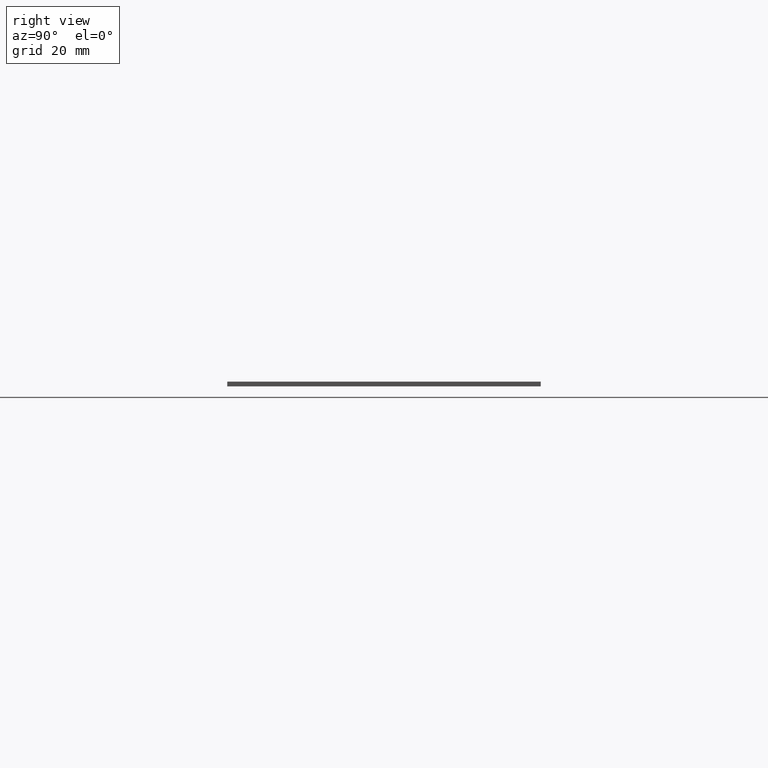
[diagram: clean part render]
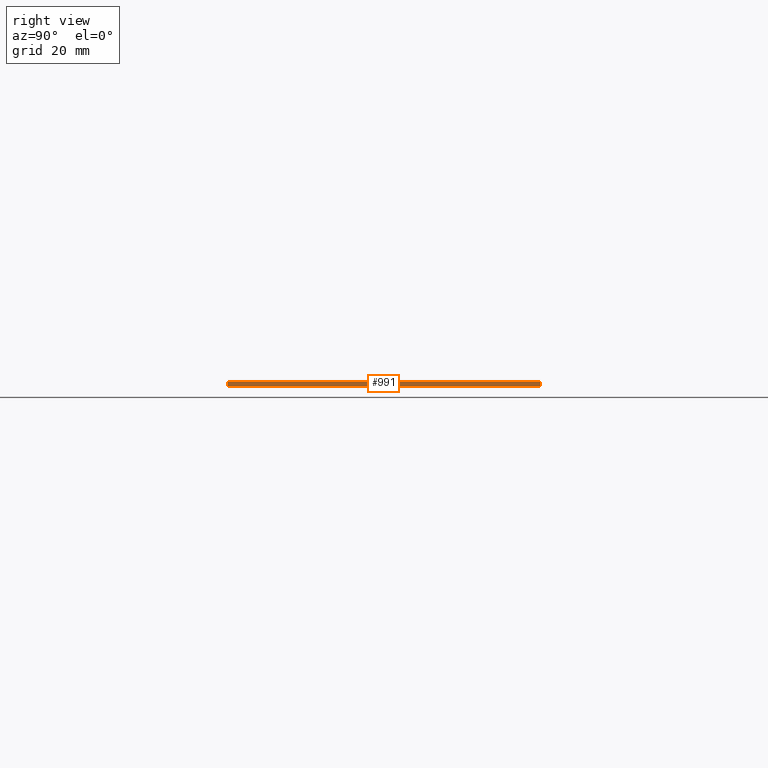
[diagram: same view with one face highlighted and labeled with its STEP entity id]
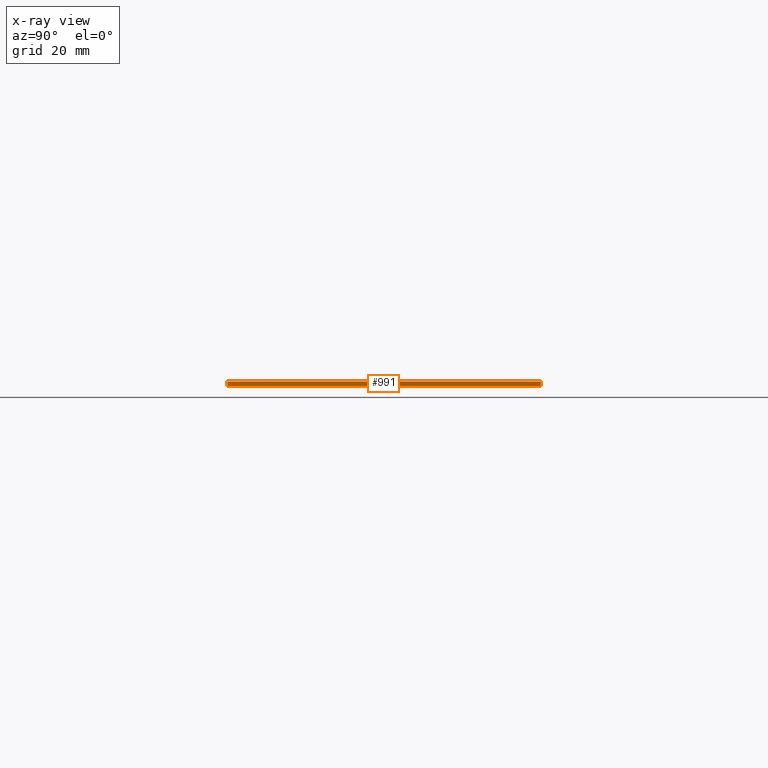
[diagram: x-ray of the same camera — body ghosted, the highlighted face saturated]
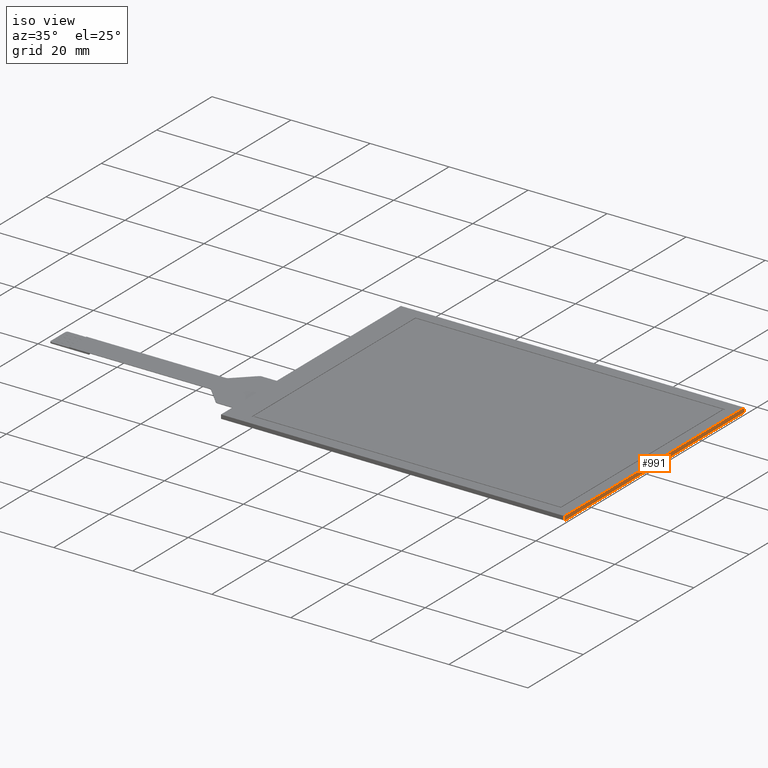
[diagram: same view with one face highlighted and labeled with its STEP entity id]
A machine part, right view. The second image highlights one B-rep face of the part: STEP entity #991.
The next image is the same camera in x-ray: the body ghosted, the highlighted face saturated — about 0% of this face is hidden behind the body in this view.
A second angle (iso view) of the same face is appended — the face is thin or edge-on in the first view.
In plain terms, the highlighted planar face has unit normal (1, 0, 0).
Its self-contained STEP definition (entity closure, byte-faithful):
#59=PLANE('',#1074);
#110=FACE_OUTER_BOUND('',#164,.T.);
#164=EDGE_LOOP('',(#922,#923,#924,#925));
#285=LINE('',#1595,#411);
#290=LINE('',#1605,#416);
#291=LINE('',#1608,#417);
#292=LINE('',#1609,#418);
#411=VECTOR('',#1311,10.);
#416=VECTOR('',#1320,10.);
#417=VECTOR('',#1323,10.);
#418=VECTOR('',#1324,10.);
#516=VERTEX_POINT('',#1588);
#519=VERTEX_POINT('',#1593);
#522=VERTEX_POINT('',#1603);
#523=VERTEX_POINT('',#1607);
#653=EDGE_CURVE('',#519,#516,#285,.T.);
#658=EDGE_CURVE('',#519,#522,#290,.T.);
#659=EDGE_CURVE('',#523,#522,#291,.T.);
#660=EDGE_CURVE('',#516,#523,#292,.T.);
#922=ORIENTED_EDGE('',*,*,#653,.F.);
#923=ORIENTED_EDGE('',*,*,#658,.T.);
#924=ORIENTED_EDGE('',*,*,#659,.F.);
#925=ORIENTED_EDGE('',*,*,#660,.F.);
#991=ADVANCED_FACE('',(#110),#59,.T.);
#1074=AXIS2_PLACEMENT_3D('',#1606,#1321,#1322);
#1311=DIRECTION('',(0.,1.,0.));
#1320=DIRECTION('',(0.,0.,-1.));
#1321=DIRECTION('center_axis',(1.,0.,0.));
#1322=DIRECTION('ref_axis',(0.,-1.,0.));
#1323=DIRECTION('',(0.,-1.,0.));
#1324=DIRECTION('',(0.,0.,-1.));
#1588=CARTESIAN_POINT('',(41.99,32.61,0.));
#1593=CARTESIAN_POINT('',(41.99,-32.39,0.));
#1595=CARTESIAN_POINT('',(41.99,-32.39,0.));
#1603=CARTESIAN_POINT('',(41.99,-32.39,-1.));
#1605=CARTESIAN_POINT('',(41.99,-32.39,0.));
#1606=CARTESIAN_POINT('Origin',(41.99,32.61,0.));
#1607=CARTESIAN_POINT('',(41.99,32.61,-1.));
#1608=CARTESIAN_POINT('',(41.99,-32.39,-1.));
#1609=CARTESIAN_POINT('',(41.99,32.61,0.));